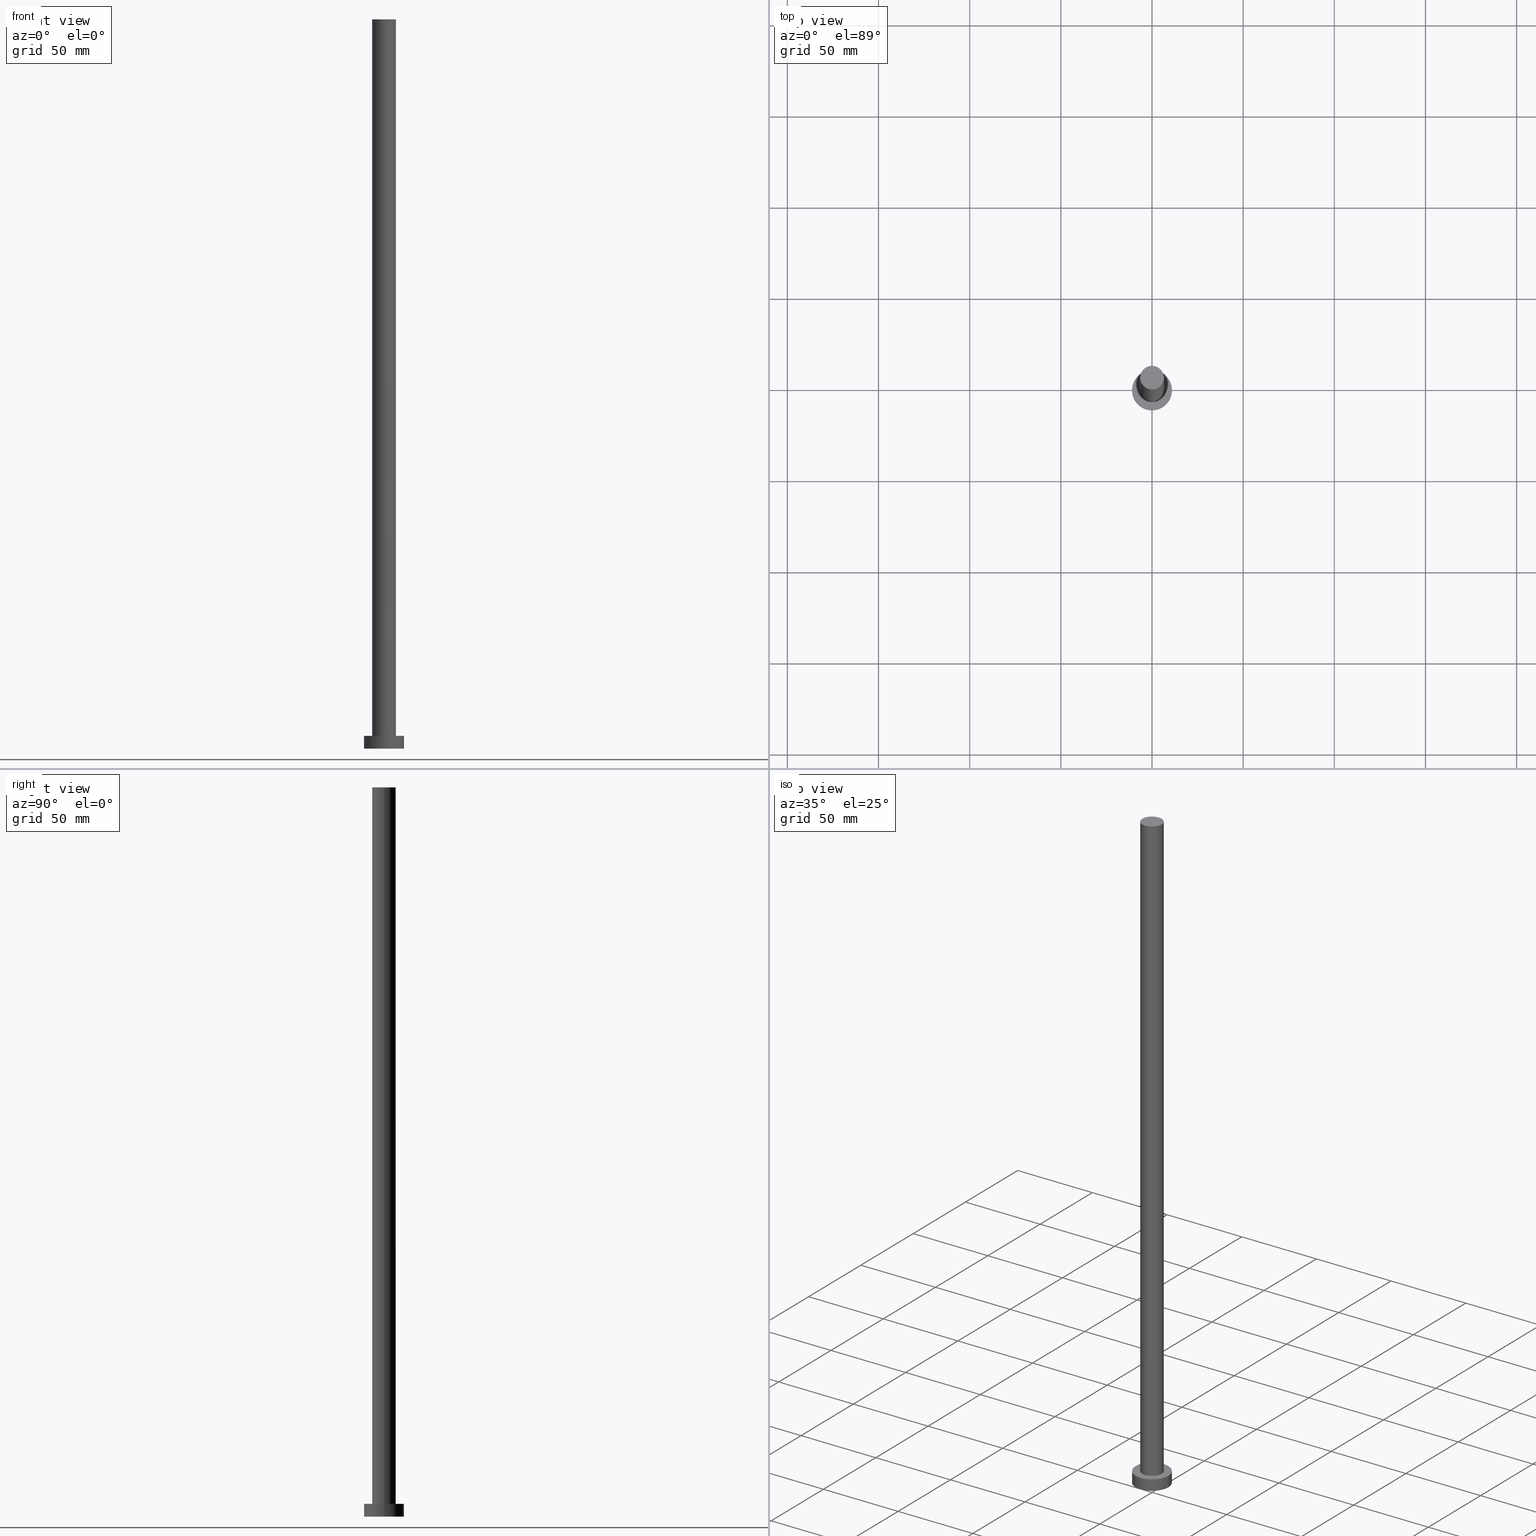
[diagram: canonical four-view strip — front | top / right | iso, engineering-drawing reading convention]
A machine part, canonical four-view strip (front | top / right | iso — engineering-drawing reading convention). The complete STEP part file that produces these views, byte-faithful:
ISO-10303-21;
HEADER;
FILE_DESCRIPTION (( 'STEP AP203' ),
    '1' );
FILE_NAME ('1aab.STEP',
    '2023-02-13T11:35:22',
    ( '' ),
    ( '' ),
    'SwSTEP 2.0',
    'SolidWorks 2019',
    '' );
FILE_SCHEMA (( 'CONFIG_CONTROL_DESIGN' ));
ENDSEC;

DATA;
#1 = APPROVAL_PERSON_ORGANIZATION ( #9, #104, #166 ) ;
#2 = ADVANCED_FACE ( 'NONE', ( #76 ), #97, .T. ) ;
#3 = CALENDAR_DATE ( 2023, 13, 2 ) ;
#4 = CYLINDRICAL_SURFACE ( 'NONE', #139, 6.500000000000000888 ) ;
#5 = UNCERTAINTY_MEASURE_WITH_UNIT (LENGTH_MEASURE( 1.000000000000000082E-05 ), #171, 'distance_accuracy_value', 'NONE');
#6 = AXIS2_PLACEMENT_3D ( 'NONE', #114, #173, #208 ) ;
#7 = PERSON_AND_ORGANIZATION ( #210, #187 ) ;
#8 = CIRCLE ( 'NONE', #67, 11.00000000000000000 ) ;
#9 = PERSON_AND_ORGANIZATION ( #210, #187 ) ;
#10 = ORIENTED_EDGE ( 'NONE', *, *, #111, .F. ) ;
#11 = PERSON_AND_ORGANIZATION ( #210, #187 ) ;
#12 = CARTESIAN_POINT ( 'NONE',  ( 0.000000000000000000, 0.000000000000000000, 7.000000000000000000 ) ) ;
#13 = VECTOR ( 'NONE', #159, 1000.000000000000000 ) ;
#14 = COORDINATED_UNIVERSAL_TIME_OFFSET ( 1, 0, .AHEAD. ) ;
#15 = VERTEX_POINT ( 'NONE', #44 ) ;
#16 = CC_DESIGN_APPROVAL ( #104, ( #58 ) ) ;
#17 = LINE ( 'NONE', #227, #35 ) ;
#18 = CC_DESIGN_DATE_AND_TIME_ASSIGNMENT ( #217, #215, ( #155 ) ) ;
#19 = ORIENTED_EDGE ( 'NONE', *, *, #31, .T. ) ;
#20 = DIRECTION ( 'NONE',  ( 0.000000000000000000, 0.000000000000000000, 1.000000000000000000 ) ) ;
#21 = CARTESIAN_POINT ( 'NONE',  ( 6.500000000000000888, 7.960204194457796463E-16, 400.0000000000000000 ) ) ;
#22 = LOCAL_TIME ( 12, 35, 22.00000000000000000, #14 ) ;
#23 = CARTESIAN_POINT ( 'NONE',  ( -6.500000000000000888, 0.000000000000000000, 400.0000000000000000 ) ) ;
#24 = LOCAL_TIME ( 12, 35, 22.00000000000000000, #65 ) ;
#25 = CC_DESIGN_PERSON_AND_ORGANIZATION_ASSIGNMENT ( #134, #78, ( #155 ) ) ;
#26 = DATE_AND_TIME ( #3, #24 ) ;
#27 = DIRECTION ( 'NONE',  ( -1.000000000000000000, 0.000000000000000000, 0.000000000000000000 ) ) ;
#28 = EDGE_LOOP ( 'NONE', ( #144, #125 ) ) ;
#29 = CIRCLE ( 'NONE', #34, 11.00000000000000000 ) ;
#30 = AXIS2_PLACEMENT_3D ( 'NONE', #42, #218, #179 ) ;
#31 = EDGE_CURVE ( 'NONE', #15, #216, #46, .T. ) ;
#32 = CALENDAR_DATE ( 2023, 13, 2 ) ;
#33 = APPLICATION_PROTOCOL_DEFINITION ( 'international standard', 'config_control_design', 1994, #219 ) ;
#34 = AXIS2_PLACEMENT_3D ( 'NONE', #135, #229, #39 ) ;
#35 = VECTOR ( 'NONE', #205, 1000.000000000000000 ) ;
#36 = FACE_OUTER_BOUND ( 'NONE', #28, .T. ) ;
#37 = EDGE_LOOP ( 'NONE', ( #126, #234, #247, #143 ) ) ;
#38 = CYLINDRICAL_SURFACE ( 'NONE', #255, 11.00000000000000000 ) ;
#39 = DIRECTION ( 'NONE',  ( 1.000000000000000000, 0.000000000000000000, 0.000000000000000000 ) ) ;
#40 = EDGE_CURVE ( 'NONE', #47, #241, #146, .T. ) ;
#41 = PERSON_AND_ORGANIZATION_ROLE ( 'design_supplier' ) ;
#42 = CARTESIAN_POINT ( 'NONE',  ( 0.000000000000000000, 0.000000000000000000, 0.000000000000000000 ) ) ;
#43 = ORIENTED_EDGE ( 'NONE', *, *, #124, .F. ) ;
#44 = CARTESIAN_POINT ( 'NONE',  ( 11.00000000000000000, 1.347111479062088405E-15, 7.000000000000000000 ) ) ;
#45 = DIRECTION ( 'NONE',  ( -0.000000000000000000, -0.000000000000000000, -1.000000000000000000 ) ) ;
#46 = LINE ( 'NONE', #107, #49 ) ;
#47 = VERTEX_POINT ( 'NONE', #23 ) ;
#48 = VERTEX_POINT ( 'NONE', #193 ) ;
#49 = VECTOR ( 'NONE', #180, 1000.000000000000000 ) ;
#50 = DIRECTION ( 'NONE',  ( 1.000000000000000000, 0.000000000000000000, 0.000000000000000000 ) ) ;
#51 = ORIENTED_EDGE ( 'NONE', *, *, #40, .T. ) ;
#52 = ORIENTED_EDGE ( 'NONE', *, *, #138, .F. ) ;
#53 = CYLINDRICAL_SURFACE ( 'NONE', #62, 11.00000000000000000 ) ;
#54 = SECURITY_CLASSIFICATION_LEVEL ( 'unclassified' ) ;
#55 = DIRECTION ( 'NONE',  ( -0.000000000000000000, -0.000000000000000000, -1.000000000000000000 ) ) ;
#56 = COORDINATED_UNIVERSAL_TIME_OFFSET ( 1, 0, .AHEAD. ) ;
#57 = LINE ( 'NONE', #81, #13 ) ;
#58 = PRODUCT_DEFINITION_FORMATION_WITH_SPECIFIED_SOURCE ( 'LIBOVOLN�', '', #112, .NOT_KNOWN. ) ;
#59 = CALENDAR_DATE ( 2023, 13, 2 ) ;
#60 = DESIGN_CONTEXT ( 'detailed design', #140, 'design' ) ;
#61 = CC_DESIGN_PERSON_AND_ORGANIZATION_ASSIGNMENT ( #237, #41, ( #58 ) ) ;
#62 = AXIS2_PLACEMENT_3D ( 'NONE', #12, #174, #254 ) ;
#63 = APPROVAL_STATUS ( 'not_yet_approved' ) ;
#64 = EDGE_CURVE ( 'NONE', #185, #224, #57, .T. ) ;
#65 = COORDINATED_UNIVERSAL_TIME_OFFSET ( 1, 0, .AHEAD. ) ;
#66 = DIRECTION ( 'NONE',  ( 0.000000000000000000, 0.000000000000000000, 1.000000000000000000 ) ) ;
#67 = AXIS2_PLACEMENT_3D ( 'NONE', #162, #66, #50 ) ;
#68 = ORIENTED_EDGE ( 'NONE', *, *, #80, .F. ) ;
#69 = ADVANCED_FACE ( 'NONE', ( #75 ), #226, .T. ) ;
#70 = DIRECTION ( 'NONE',  ( -0.000000000000000000, -0.000000000000000000, -1.000000000000000000 ) ) ;
#71 = CALENDAR_DATE ( 2023, 13, 2 ) ;
#72 = PRODUCT_DEFINITION_SHAPE ( 'NONE', 'NONE',  #93 ) ;
#73 = DIRECTION ( 'NONE',  ( 1.000000000000000000, 0.000000000000000000, 0.000000000000000000 ) ) ;
#74 = DATE_AND_TIME ( #32, #22 ) ;
#75 = FACE_OUTER_BOUND ( 'NONE', #127, .T. ) ;
#76 = FACE_OUTER_BOUND ( 'NONE', #123, .T. ) ;
#77 = DIRECTION ( 'NONE',  ( 1.000000000000000000, 0.000000000000000000, -0.000000000000000000 ) ) ;
#78 = PERSON_AND_ORGANIZATION_ROLE ( 'classification_officer' ) ;
#79 = AXIS2_PLACEMENT_3D ( 'NONE', #175, #20, #189 ) ;
#80 = EDGE_CURVE ( 'NONE', #47, #96, #17, .T. ) ;
#81 = CARTESIAN_POINT ( 'NONE',  ( -11.00000000000000000, 0.000000000000000000, 7.000000000000000000 ) ) ;
#82 = DIRECTION ( 'NONE',  ( -1.000000000000000000, 0.000000000000000000, 0.000000000000000000 ) ) ;
#83 = ORIENTED_EDGE ( 'NONE', *, *, #31, .F. ) ;
#84 = CARTESIAN_POINT ( 'NONE',  ( 0.000000000000000000, 0.000000000000000000, 400.0000000000000000 ) ) ;
#85 = ADVANCED_BREP_SHAPE_REPRESENTATION ( '1aab', ( #156, #30 ), #194 ) ;
#86 = CIRCLE ( 'NONE', #230, 11.00000000000000000 ) ;
#87 = APPROVAL ( #117, 'NEUR�EN�' ) ;
#88 = APPLICATION_PROTOCOL_DEFINITION ( 'international standard', 'config_control_design', 1994, #140 ) ;
#89 = ORIENTED_EDGE ( 'NONE', *, *, #176, .T. ) ;
#90 = PERSON_AND_ORGANIZATION_ROLE ( 'creator' ) ;
#91 = CARTESIAN_POINT ( 'NONE',  ( 11.00000000000000000, 1.347111479062088405E-15, 0.000000000000000000 ) ) ;
#92 = LINE ( 'NONE', #172, #190 ) ;
#93 = PRODUCT_DEFINITION ( 'NEZN�M�', '', #58, #60 ) ;
#94 = AXIS2_PLACEMENT_3D ( 'NONE', #149, #151, #252 ) ;
#95 = DIRECTION ( 'NONE',  ( 0.000000000000000000, 0.000000000000000000, 1.000000000000000000 ) ) ;
#96 = VERTEX_POINT ( 'NONE', #129 ) ;
#97 = CYLINDRICAL_SURFACE ( 'NONE', #206, 6.500000000000000888 ) ;
#98 = CARTESIAN_POINT ( 'NONE',  ( -11.00000000000000000, 0.000000000000000000, 7.000000000000000000 ) ) ;
#99 = LOCAL_TIME ( 12, 35, 22.00000000000000000, #195 ) ;
#100 = CALENDAR_DATE ( 2023, 13, 2 ) ;
#101 = CC_DESIGN_PERSON_AND_ORGANIZATION_ASSIGNMENT ( #11, #90, ( #58 ) ) ;
#102 = PERSON_AND_ORGANIZATION ( #210, #187 ) ;
#103 = CC_DESIGN_APPROVAL ( #158, ( #93 ) ) ;
#104 = APPROVAL ( #108, 'NEUR�EN�' ) ;
#105 = MECHANICAL_CONTEXT ( 'NONE', #219, 'mechanical' ) ;
#106 = ORIENTED_EDGE ( 'NONE', *, *, #64, .F. ) ;
#107 = CARTESIAN_POINT ( 'NONE',  ( 11.00000000000000000, 1.347111479062088405E-15, 7.000000000000000000 ) ) ;
#108 = APPROVAL_STATUS ( 'not_yet_approved' ) ;
#109 = EDGE_LOOP ( 'NONE', ( #83, #43, #213, #167 ) ) ;
#110 = PLANE ( 'NONE',  #94 ) ;
#111 = EDGE_CURVE ( 'NONE', #15, #185, #29, .T. ) ;
#112 = PRODUCT ( '1aab', '1aab', '', ( #105 ) ) ;
#113 = DIRECTION ( 'NONE',  ( 1.000000000000000000, 0.000000000000000000, 0.000000000000000000 ) ) ;
#114 = CARTESIAN_POINT ( 'NONE',  ( 0.000000000000000000, 0.000000000000000000, 7.000000000000000000 ) ) ;
#115 = DIRECTION ( 'NONE',  ( 1.000000000000000000, 0.000000000000000000, 0.000000000000000000 ) ) ;
#116 = DIRECTION ( 'NONE',  ( 1.000000000000000000, 0.000000000000000000, 0.000000000000000000 ) ) ;
#117 = APPROVAL_STATUS ( 'not_yet_approved' ) ;
#118 = CIRCLE ( 'NONE', #6, 6.500000000000000888 ) ;
#119 = AXIS2_PLACEMENT_3D ( 'NONE', #211, #249, #214 ) ;
#120 = CARTESIAN_POINT ( 'NONE',  ( 0.000000000000000000, 0.000000000000000000, 7.000000000000000000 ) ) ;
#121 = APPROVAL_ROLE ( '' ) ;
#122 = AXIS2_PLACEMENT_3D ( 'NONE', #150, #228, #116 ) ;
#123 = EDGE_LOOP ( 'NONE', ( #142, #207, #245, #68 ) ) ;
#124 = EDGE_CURVE ( 'NONE', #185, #15, #242, .T. ) ;
#125 = ORIENTED_EDGE ( 'NONE', *, *, #111, .T. ) ;
#126 = ORIENTED_EDGE ( 'NONE', *, *, #165, .F. ) ;
#127 = EDGE_LOOP ( 'NONE', ( #51, #89 ) ) ;
#128 = DATE_AND_TIME ( #71, #200 ) ;
#129 = CARTESIAN_POINT ( 'NONE',  ( -6.500000000000000888, 0.000000000000000000, 7.000000000000000000 ) ) ;
#130 = FACE_OUTER_BOUND ( 'NONE', #109, .T. ) ;
#131 = CC_DESIGN_DATE_AND_TIME_ASSIGNMENT ( #74, #223, ( #93 ) ) ;
#132 = CIRCLE ( 'NONE', #148, 6.500000000000000888 ) ;
#133 = DIRECTION ( 'NONE',  ( 0.000000000000000000, 0.000000000000000000, 1.000000000000000000 ) ) ;
#134 = PERSON_AND_ORGANIZATION ( #210, #187 ) ;
#135 = CARTESIAN_POINT ( 'NONE',  ( 0.000000000000000000, 0.000000000000000000, 7.000000000000000000 ) ) ;
#136 = APPROVAL_DATE_TIME ( #157, #87 ) ;
#137 = ADVANCED_FACE ( 'NONE', ( #186 ), #53, .T. ) ;
#138 = EDGE_CURVE ( 'NONE', #224, #216, #86, .T. ) ;
#139 = AXIS2_PLACEMENT_3D ( 'NONE', #84, #45, #27 ) ;
#140 = APPLICATION_CONTEXT ( 'configuration controlled 3d designs of mechanical parts and assemblies' ) ;
#141 = EDGE_CURVE ( 'NONE', #48, #96, #118, .T. ) ;
#142 = ORIENTED_EDGE ( 'NONE', *, *, #176, .F. ) ;
#143 = ORIENTED_EDGE ( 'NONE', *, *, #170, .T. ) ;
#144 = ORIENTED_EDGE ( 'NONE', *, *, #124, .T. ) ;
#145 = CC_DESIGN_PERSON_AND_ORGANIZATION_ASSIGNMENT ( #177, #164, ( #93 ) ) ;
#146 = CIRCLE ( 'NONE', #122, 6.500000000000000888 ) ;
#147 = EDGE_LOOP ( 'NONE', ( #52, #202 ) ) ;
#148 = AXIS2_PLACEMENT_3D ( 'NONE', #191, #250, #73 ) ;
#149 = CARTESIAN_POINT ( 'NONE',  ( 0.000000000000000000, 0.000000000000000000, 0.000000000000000000 ) ) ;
#150 = CARTESIAN_POINT ( 'NONE',  ( 0.000000000000000000, 0.000000000000000000, 400.0000000000000000 ) ) ;
#151 = DIRECTION ( 'NONE',  ( 0.000000000000000000, 0.000000000000000000, 1.000000000000000000 ) ) ;
#152 = CC_DESIGN_PERSON_AND_ORGANIZATION_ASSIGNMENT ( #7, #240, ( #112 ) ) ;
#153 = CARTESIAN_POINT ( 'NONE',  ( 0.000000000000000000, 0.000000000000000000, 400.0000000000000000 ) ) ;
#154 = CARTESIAN_POINT ( 'NONE',  ( 0.000000000000000000, 0.000000000000000000, 0.000000000000000000 ) ) ;
#155 = SECURITY_CLASSIFICATION ( '', '', #54 ) ;
#156 = MANIFOLD_SOLID_BREP ( 'P�idat vysunut�m3', #160 ) ;
#157 = DATE_AND_TIME ( #100, #99 ) ;
#158 = APPROVAL ( #63, 'NEUR�EN�' ) ;
#159 = DIRECTION ( 'NONE',  ( -0.000000000000000000, -0.000000000000000000, -1.000000000000000000 ) ) ;
#160 = CLOSED_SHELL ( 'NONE', ( #2, #137, #196, #239, #192, #198, #69 ) ) ;
#161 = APPROVAL_PERSON_ORGANIZATION ( #238, #87, #235 ) ;
#162 = CARTESIAN_POINT ( 'NONE',  ( 0.000000000000000000, 0.000000000000000000, 0.000000000000000000 ) ) ;
#163 = AXIS2_PLACEMENT_3D ( 'NONE', #184, #233, #113 ) ;
#164 = PERSON_AND_ORGANIZATION_ROLE ( 'creator' ) ;
#165 = EDGE_CURVE ( 'NONE', #241, #48, #92, .T. ) ;
#166 = APPROVAL_ROLE ( '' ) ;
#167 = ORIENTED_EDGE ( 'NONE', *, *, #138, .T. ) ;
#168 = CARTESIAN_POINT ( 'NONE',  ( -11.00000000000000000, 0.000000000000000000, 0.000000000000000000 ) ) ;
#169 = ORIENTED_EDGE ( 'NONE', *, *, #141, .F. ) ;
#170 = EDGE_CURVE ( 'NONE', #96, #48, #197, .T. ) ;
#171 =( LENGTH_UNIT ( ) NAMED_UNIT ( * ) SI_UNIT ( .MILLI., .METRE. ) );
#172 = CARTESIAN_POINT ( 'NONE',  ( 6.500000000000000888, 7.960204194457796463E-16, 400.0000000000000000 ) ) ;
#173 = DIRECTION ( 'NONE',  ( 0.000000000000000000, 0.000000000000000000, 1.000000000000000000 ) ) ;
#174 = DIRECTION ( 'NONE',  ( -0.000000000000000000, -0.000000000000000000, -1.000000000000000000 ) ) ;
#175 = CARTESIAN_POINT ( 'NONE',  ( 0.000000000000000000, 0.000000000000000000, 400.0000000000000000 ) ) ;
#176 = EDGE_CURVE ( 'NONE', #241, #47, #132, .T. ) ;
#177 = PERSON_AND_ORGANIZATION ( #210, #187 ) ;
#178 = EDGE_LOOP ( 'NONE', ( #10, #19, #222, #106 ) ) ;
#179 = DIRECTION ( 'NONE',  ( 1.000000000000000000, 0.000000000000000000, 0.000000000000000000 ) ) ;
#180 = DIRECTION ( 'NONE',  ( -0.000000000000000000, -0.000000000000000000, -1.000000000000000000 ) ) ;
#181 = CC_DESIGN_SECURITY_CLASSIFICATION ( #155, ( #58 ) ) ;
#182 =( NAMED_UNIT ( * ) PLANE_ANGLE_UNIT ( ) SI_UNIT ( $, .RADIAN. ) );
#183 = APPROVAL_DATE_TIME ( #128, #104 ) ;
#184 = CARTESIAN_POINT ( 'NONE',  ( 0.000000000000000000, 0.000000000000000000, 7.000000000000000000 ) ) ;
#185 = VERTEX_POINT ( 'NONE', #98 ) ;
#186 = FACE_OUTER_BOUND ( 'NONE', #178, .T. ) ;
#187 = ORGANIZATION ( 'NEUR�EN�', 'NEUR�EN�', '' ) ;
#188 = ORIENTED_EDGE ( 'NONE', *, *, #170, .F. ) ;
#189 = DIRECTION ( 'NONE',  ( 1.000000000000000000, 0.000000000000000000, -0.000000000000000000 ) ) ;
#190 = VECTOR ( 'NONE', #55, 1000.000000000000000 ) ;
#191 = CARTESIAN_POINT ( 'NONE',  ( 0.000000000000000000, 0.000000000000000000, 400.0000000000000000 ) ) ;
#192 = ADVANCED_FACE ( 'NONE', ( #204 ), #110, .F. ) ;
#193 = CARTESIAN_POINT ( 'NONE',  ( 6.500000000000000888, 7.960204194457796463E-16, 7.000000000000000000 ) ) ;
#194 =( GEOMETRIC_REPRESENTATION_CONTEXT ( 3 ) GLOBAL_UNCERTAINTY_ASSIGNED_CONTEXT ( ( #5 ) ) GLOBAL_UNIT_ASSIGNED_CONTEXT ( ( #171, #182, #225 ) ) REPRESENTATION_CONTEXT ( 'NONE', 'WORKASPACE' ) );
#195 = COORDINATED_UNIVERSAL_TIME_OFFSET ( 1, 0, .AHEAD. ) ;
#196 = ADVANCED_FACE ( 'NONE', ( #130 ), #38, .T. ) ;
#197 = CIRCLE ( 'NONE', #119, 6.500000000000000888 ) ;
#198 = ADVANCED_FACE ( 'NONE', ( #201 ), #4, .T. ) ;
#199 = APPROVAL_DATE_TIME ( #26, #158 ) ;
#200 = LOCAL_TIME ( 12, 35, 22.00000000000000000, #244 ) ;
#201 = FACE_OUTER_BOUND ( 'NONE', #37, .T. ) ;
#202 = ORIENTED_EDGE ( 'NONE', *, *, #203, .F. ) ;
#203 = EDGE_CURVE ( 'NONE', #216, #224, #8, .T. ) ;
#204 = FACE_OUTER_BOUND ( 'NONE', #147, .T. ) ;
#205 = DIRECTION ( 'NONE',  ( -0.000000000000000000, -0.000000000000000000, -1.000000000000000000 ) ) ;
#206 = AXIS2_PLACEMENT_3D ( 'NONE', #153, #231, #220 ) ;
#207 = ORIENTED_EDGE ( 'NONE', *, *, #165, .T. ) ;
#208 = DIRECTION ( 'NONE',  ( 1.000000000000000000, 0.000000000000000000, 0.000000000000000000 ) ) ;
#209 = LOCAL_TIME ( 12, 35, 22.00000000000000000, #56 ) ;
#210 = PERSON ( 'NEUR�EN�', 'NEUR�EN�', 'NEUR�EN�', ('NEUR�EN�'), ('NEUR�EN�'), ('NEUR�EN�') ) ;
#211 = CARTESIAN_POINT ( 'NONE',  ( 0.000000000000000000, 0.000000000000000000, 7.000000000000000000 ) ) ;
#212 = SHAPE_DEFINITION_REPRESENTATION ( #72, #85 ) ;
#213 = ORIENTED_EDGE ( 'NONE', *, *, #64, .T. ) ;
#214 = DIRECTION ( 'NONE',  ( 1.000000000000000000, 0.000000000000000000, 0.000000000000000000 ) ) ;
#215 = DATE_TIME_ROLE ( 'classification_date' ) ;
#216 = VERTEX_POINT ( 'NONE', #91 ) ;
#217 = DATE_AND_TIME ( #59, #209 ) ;
#218 = DIRECTION ( 'NONE',  ( 0.000000000000000000, 0.000000000000000000, 1.000000000000000000 ) ) ;
#219 = APPLICATION_CONTEXT ( 'configuration controlled 3d designs of mechanical parts and assemblies' ) ;
#220 = DIRECTION ( 'NONE',  ( -1.000000000000000000, 0.000000000000000000, 0.000000000000000000 ) ) ;
#221 = CC_DESIGN_APPROVAL ( #87, ( #155 ) ) ;
#222 = ORIENTED_EDGE ( 'NONE', *, *, #203, .T. ) ;
#223 = DATE_TIME_ROLE ( 'creation_date' ) ;
#224 = VERTEX_POINT ( 'NONE', #168 ) ;
#225 =( NAMED_UNIT ( * ) SI_UNIT ( $, .STERADIAN. ) SOLID_ANGLE_UNIT ( ) );
#226 = PLANE ( 'NONE',  #79 ) ;
#227 = CARTESIAN_POINT ( 'NONE',  ( -6.500000000000000888, 0.000000000000000000, 400.0000000000000000 ) ) ;
#228 = DIRECTION ( 'NONE',  ( 0.000000000000000000, 0.000000000000000000, 1.000000000000000000 ) ) ;
#229 = DIRECTION ( 'NONE',  ( 0.000000000000000000, 0.000000000000000000, 1.000000000000000000 ) ) ;
#230 = AXIS2_PLACEMENT_3D ( 'NONE', #154, #95, #115 ) ;
#231 = DIRECTION ( 'NONE',  ( -0.000000000000000000, -0.000000000000000000, -1.000000000000000000 ) ) ;
#232 = FACE_BOUND ( 'NONE', #243, .T. ) ;
#233 = DIRECTION ( 'NONE',  ( 0.000000000000000000, 0.000000000000000000, 1.000000000000000000 ) ) ;
#234 = ORIENTED_EDGE ( 'NONE', *, *, #40, .F. ) ;
#235 = APPROVAL_ROLE ( '' ) ;
#236 = AXIS2_PLACEMENT_3D ( 'NONE', #246, #133, #77 ) ;
#237 = PERSON_AND_ORGANIZATION ( #210, #187 ) ;
#238 = PERSON_AND_ORGANIZATION ( #210, #187 ) ;
#239 = ADVANCED_FACE ( 'NONE', ( #232, #36 ), #251, .T. ) ;
#240 = PERSON_AND_ORGANIZATION_ROLE ( 'design_owner' ) ;
#241 = VERTEX_POINT ( 'NONE', #21 ) ;
#242 = CIRCLE ( 'NONE', #163, 11.00000000000000000 ) ;
#243 = EDGE_LOOP ( 'NONE', ( #188, #169 ) ) ;
#244 = COORDINATED_UNIVERSAL_TIME_OFFSET ( 1, 0, .AHEAD. ) ;
#245 = ORIENTED_EDGE ( 'NONE', *, *, #141, .T. ) ;
#246 = CARTESIAN_POINT ( 'NONE',  ( 0.000000000000000000, 0.000000000000000000, 7.000000000000000000 ) ) ;
#247 = ORIENTED_EDGE ( 'NONE', *, *, #80, .T. ) ;
#248 = APPROVAL_PERSON_ORGANIZATION ( #102, #158, #121 ) ;
#249 = DIRECTION ( 'NONE',  ( 0.000000000000000000, 0.000000000000000000, 1.000000000000000000 ) ) ;
#250 = DIRECTION ( 'NONE',  ( 0.000000000000000000, 0.000000000000000000, 1.000000000000000000 ) ) ;
#251 = PLANE ( 'NONE',  #236 ) ;
#252 = DIRECTION ( 'NONE',  ( 1.000000000000000000, 0.000000000000000000, -0.000000000000000000 ) ) ;
#253 = PRODUCT_RELATED_PRODUCT_CATEGORY ( 'detail', '', ( #112 ) ) ;
#254 = DIRECTION ( 'NONE',  ( -1.000000000000000000, 0.000000000000000000, 0.000000000000000000 ) ) ;
#255 = AXIS2_PLACEMENT_3D ( 'NONE', #120, #70, #82 ) ;
ENDSEC;
END-ISO-10303-21;
